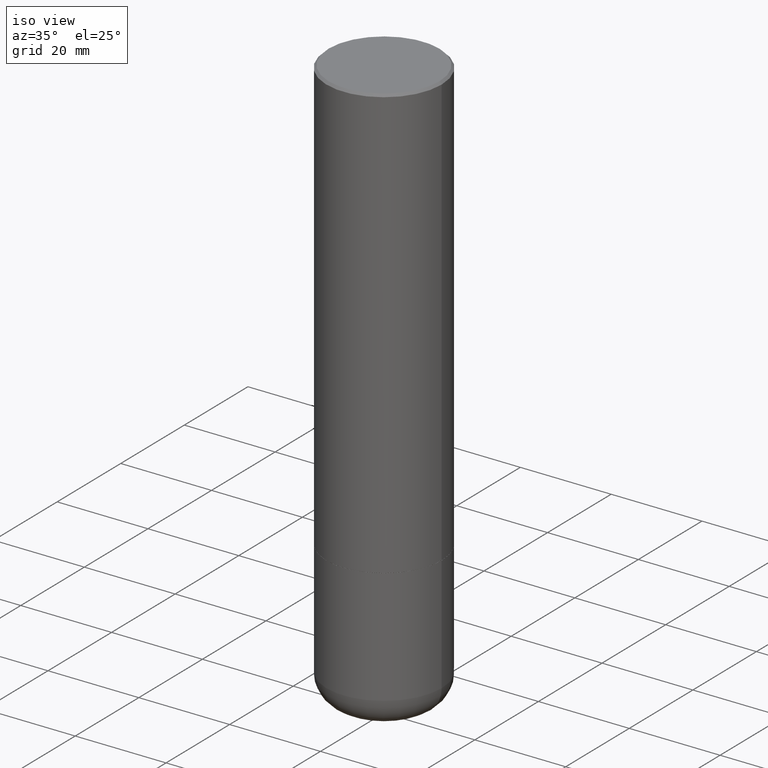
[diagram: clean part render]
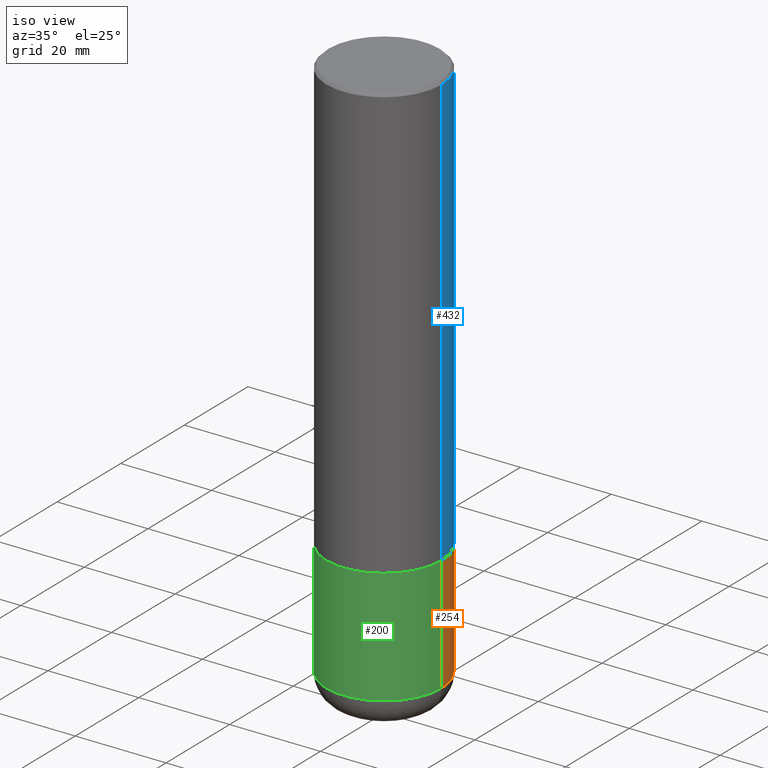
[diagram: same view with three faces highlighted in distinct colors, each labeled with its STEP entity id]
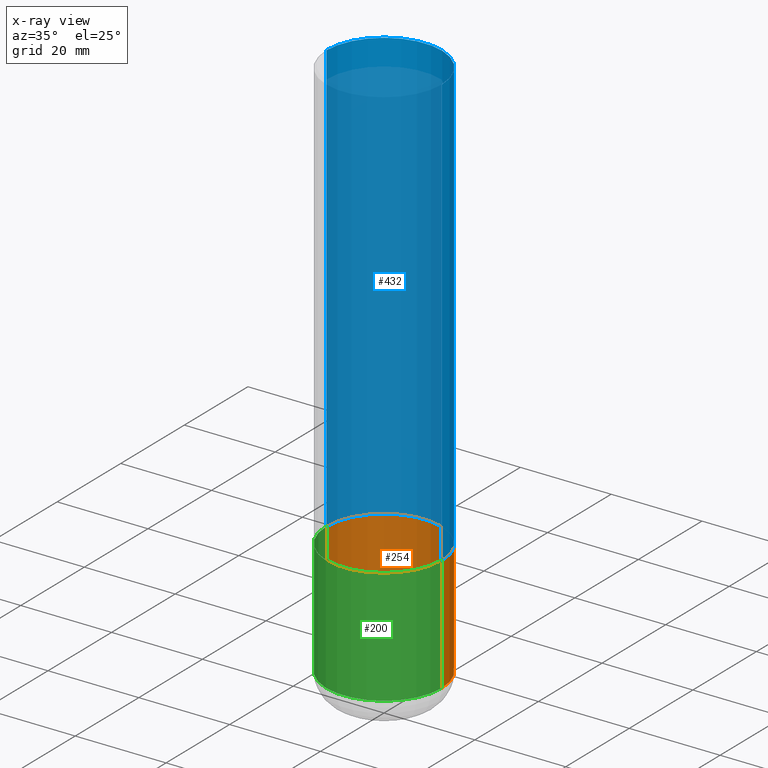
[diagram: x-ray of the same camera — body ghosted, the three highlighted faces saturated]
A machine part, iso view with three faces highlighted in distinct colors.
The next image is the same camera in x-ray (body ghosted, the three faces saturated) — at least one of them is partly hidden behind the body in this view.
Their STEP definitions:

[orange] entity #254 — the highlighted cylindrical surface (partial cylindrical patch) has radius 12.7 mm, axis along (-0, 0, 1).
#5 = VECTOR ( 'NONE', #279, 39.37007874015748143 ) ;
#10 = EDGE_CURVE ( 'NONE', #30, #378, #394, .T. ) ;
#23 = CARTESIAN_POINT ( 'NONE',  ( 0.4999999999999997224, -3.491481338843131383E-15, 2.438088387897966495E-29 ) ) ;
#30 = VERTEX_POINT ( 'NONE', #88 ) ;
#32 = CARTESIAN_POINT ( 'NONE',  ( -0.4999999999999994449, -1.128609862939673161E-14, -3.750000000000000000 ) ) ;
#35 = DIRECTION ( 'NONE',  ( -2.445468806185136597E-29, 3.491481338843145583E-15, 1.000000000000000000 ) ) ;
#48 = VERTEX_POINT ( 'NONE', #81 ) ;
#73 = CARTESIAN_POINT ( 'NONE',  ( -0.4999999999999997224, 3.552713678800498957E-15, -2.459467545127451490E-29 ) ) ;
#81 = CARTESIAN_POINT ( 'NONE',  ( -0.4999999999999999445, -1.128609862939673003E-14, -4.750009519233957533 ) ) ;
#88 = CARTESIAN_POINT ( 'NONE',  ( 0.5000000000000000000, -2.007605093457579787E-14, -4.750009519233957533 ) ) ;
#95 = ORIENTED_EDGE ( 'NONE', *, *, #185, .T. ) ;
#104 = EDGE_CURVE ( 'NONE', #378, #136, #192, .T. ) ;
#116 = DIRECTION ( 'NONE',  ( 1.000000000000000000, -6.982962677686266711E-15, 0.000000000000000000 ) ) ;
#128 = CARTESIAN_POINT ( 'NONE',  ( 0.000000000000000000, 0.000000000000000000, 0.000000000000000000 ) ) ;
#136 = VERTEX_POINT ( 'NONE', #32 ) ;
#166 = AXIS2_PLACEMENT_3D ( 'NONE', #402, #483, #116 ) ;
#170 = CYLINDRICAL_SURFACE ( 'NONE', #257, 0.4999999999999997224 ) ;
#185 = EDGE_CURVE ( 'NONE', #30, #48, #365, .T. ) ;
#192 = CIRCLE ( 'NONE', #256, 0.4999999999999994449 ) ;
#254 = ADVANCED_FACE ( 'NONE', ( #341 ), #170, .T. ) ;
#256 = AXIS2_PLACEMENT_3D ( 'NONE', #364, #35, #487 ) ;
#257 = AXIS2_PLACEMENT_3D ( 'NONE', #128, #461, #420 ) ;
#262 = ORIENTED_EDGE ( 'NONE', *, *, #10, .F. ) ;
#279 = DIRECTION ( 'NONE',  ( -2.445468806185136877E-29, 3.491481338843145188E-15, 1.000000000000000000 ) ) ;
#291 = CARTESIAN_POINT ( 'NONE',  ( 0.4999999999999994449, -1.658453635950492761E-14, -3.750000000000000000 ) ) ;
#309 = LINE ( 'NONE', #73, #346 ) ;
#310 = ORIENTED_EDGE ( 'NONE', *, *, #399, .T. ) ;
#341 = FACE_OUTER_BOUND ( 'NONE', #435, .T. ) ;
#346 = VECTOR ( 'NONE', #444, 39.37007874015748143 ) ;
#364 = CARTESIAN_POINT ( 'NONE',  ( 9.170508023194262238E-29, -1.309305502066179741E-14, -3.750000000000000000 ) ) ;
#365 = CIRCLE ( 'NONE', #166, 0.5000000000000000000 ) ;
#378 = VERTEX_POINT ( 'NONE', #291 ) ;
#394 = LINE ( 'NONE', #23, #5 ) ;
#399 = EDGE_CURVE ( 'NONE', #48, #136, #309, .T. ) ;
#402 = CARTESIAN_POINT ( 'NONE',  ( 1.161600010836909978E-28, -1.658456959573266451E-14, -4.750009519233957533 ) ) ;
#420 = DIRECTION ( 'NONE',  ( 1.000000000000000000, -6.982962677686266711E-15, 4.876176775795935793E-29 ) ) ;
#435 = EDGE_LOOP ( 'NONE', ( #95, #310, #456, #262 ) ) ;
#444 = DIRECTION ( 'NONE',  ( -2.445468806185136877E-29, 3.491481338843145188E-15, 1.000000000000000000 ) ) ;
#456 = ORIENTED_EDGE ( 'NONE', *, *, #104, .F. ) ;
#461 = DIRECTION ( 'NONE',  ( -2.445468806185136597E-29, 3.491481338843145583E-15, 1.000000000000000000 ) ) ;
#483 = DIRECTION ( 'NONE',  ( -2.445468806185136597E-29, 3.491481338843145583E-15, 1.000000000000000000 ) ) ;
#487 = DIRECTION ( 'NONE',  ( 1.000000000000000000, -6.982962677686266711E-15, 0.000000000000000000 ) ) ;

[blue] entity #432 — the highlighted cylindrical surface (partial cylindrical patch) has radius 12.7 mm, axis along (-0, 0, 1).
#4 = DIRECTION ( 'NONE',  ( -2.445468806185136597E-29, 3.491481338843145583E-15, 1.000000000000000000 ) ) ;
#37 = VECTOR ( 'NONE', #147, 39.37007874015748143 ) ;
#40 = DIRECTION ( 'NONE',  ( 1.000000000000000000, -6.982962677686266711E-15, 0.000000000000000000 ) ) ;
#41 = CARTESIAN_POINT ( 'NONE',  ( 0.4999999999999990563, -3.500078625662622769E-15, -0.02000000000000020164 ) ) ;
#64 = ORIENTED_EDGE ( 'NONE', *, *, #380, .F. ) ;
#76 = CARTESIAN_POINT ( 'NONE',  ( 0.4999999999999994449, -1.658104487816608303E-14, -3.749000000000000554 ) ) ;
#77 = ORIENTED_EDGE ( 'NONE', *, *, #79, .F. ) ;
#78 = DIRECTION ( 'NONE',  ( 1.000000000000000000, -6.982962677686266711E-15, 0.000000000000000000 ) ) ;
#79 = EDGE_CURVE ( 'NONE', #123, #349, #120, .T. ) ;
#86 = DIRECTION ( 'NONE',  ( -2.445468806185136597E-29, 3.491481338843145583E-15, 1.000000000000000000 ) ) ;
#96 = VECTOR ( 'NONE', #412, 39.37007874015748143 ) ;
#117 = CYLINDRICAL_SURFACE ( 'NONE', #484, 0.4999999999999992228 ) ;
#120 = LINE ( 'NONE', #371, #96 ) ;
#123 = VERTEX_POINT ( 'NONE', #76 ) ;
#147 = DIRECTION ( 'NONE',  ( -2.445468806185136877E-29, 3.491481338843145188E-15, 1.000000000000000000 ) ) ;
#150 = CARTESIAN_POINT ( 'NONE',  ( 9.168062554388078877E-29, -1.308956353932295441E-14, -3.749000000000000554 ) ) ;
#195 = VERTEX_POINT ( 'NONE', #404 ) ;
#204 = DIRECTION ( 'NONE',  ( 1.000000000000000000, -6.982962677686267499E-15, 4.876176775795935793E-29 ) ) ;
#205 = ORIENTED_EDGE ( 'NONE', *, *, #358, .T. ) ;
#228 = EDGE_LOOP ( 'NONE', ( #307, #205, #64, #77 ) ) ;
#230 = CARTESIAN_POINT ( 'NONE',  ( 4.890937612370322204E-31, -6.982962677686361867E-17, -0.02000000000000020164 ) ) ;
#255 = CARTESIAN_POINT ( 'NONE',  ( 0.000000000000000000, 0.000000000000000000, 0.000000000000000000 ) ) ;
#307 = ORIENTED_EDGE ( 'NONE', *, *, #369, .T. ) ;
#314 = CIRCLE ( 'NONE', #332, 0.4999999999999994449 ) ;
#325 = CARTESIAN_POINT ( 'NONE',  ( -0.4999999999999992228, 3.552713678800495407E-15, -2.459467545127449248E-29 ) ) ;
#332 = AXIS2_PLACEMENT_3D ( 'NONE', #150, #401, #78 ) ;
#349 = VERTEX_POINT ( 'NONE', #41 ) ;
#358 = EDGE_CURVE ( 'NONE', #195, #447, #362, .T. ) ;
#362 = LINE ( 'NONE', #325, #37 ) ;
#368 = CIRCLE ( 'NONE', #450, 0.4999999999999990563 ) ;
#369 = EDGE_CURVE ( 'NONE', #123, #195, #314, .T. ) ;
#371 = CARTESIAN_POINT ( 'NONE',  ( 0.4999999999999992228, -3.491481338843128228E-15, 2.438088387897963973E-29 ) ) ;
#380 = EDGE_CURVE ( 'NONE', #349, #447, #368, .T. ) ;
#401 = DIRECTION ( 'NONE',  ( -2.445468806185136597E-29, 3.491481338843145583E-15, 1.000000000000000000 ) ) ;
#404 = CARTESIAN_POINT ( 'NONE',  ( -0.4999999999999994449, -3.026982904249409106E-15, -3.749000000000000554 ) ) ;
#412 = DIRECTION ( 'NONE',  ( -2.445468806185136877E-29, 3.491481338843145188E-15, 1.000000000000000000 ) ) ;
#419 = CARTESIAN_POINT ( 'NONE',  ( -0.4999999999999990563, 3.421651712066262957E-15, -0.02000000000000020164 ) ) ;
#432 = ADVANCED_FACE ( 'NONE', ( #442 ), #117, .T. ) ;
#442 = FACE_OUTER_BOUND ( 'NONE', #228, .T. ) ;
#447 = VERTEX_POINT ( 'NONE', #419 ) ;
#450 = AXIS2_PLACEMENT_3D ( 'NONE', #230, #4, #40 ) ;
#484 = AXIS2_PLACEMENT_3D ( 'NONE', #255, #86, #204 ) ;

[green] entity #200 — the highlighted cylindrical surface (partial cylindrical patch) has radius 12.7 mm, axis along (-0, 0, 1).
#1 = CARTESIAN_POINT ( 'NONE',  ( 9.170508023194262238E-29, -1.309305502066179741E-14, -3.750000000000000000 ) ) ;
#5 = VECTOR ( 'NONE', #279, 39.37007874015748143 ) ;
#10 = EDGE_CURVE ( 'NONE', #30, #378, #394, .T. ) ;
#23 = CARTESIAN_POINT ( 'NONE',  ( 0.4999999999999997224, -3.491481338843131383E-15, 2.438088387897966495E-29 ) ) ;
#30 = VERTEX_POINT ( 'NONE', #88 ) ;
#32 = CARTESIAN_POINT ( 'NONE',  ( -0.4999999999999994449, -1.128609862939673161E-14, -3.750000000000000000 ) ) ;
#39 = FACE_OUTER_BOUND ( 'NONE', #232, .T. ) ;
#44 = EDGE_CURVE ( 'NONE', #136, #378, #249, .T. ) ;
#48 = VERTEX_POINT ( 'NONE', #81 ) ;
#69 = CIRCLE ( 'NONE', #437, 0.5000000000000000000 ) ;
#73 = CARTESIAN_POINT ( 'NONE',  ( -0.4999999999999997224, 3.552713678800498957E-15, -2.459467545127451490E-29 ) ) ;
#75 = DIRECTION ( 'NONE',  ( 1.000000000000000000, -6.982962677686266711E-15, 0.000000000000000000 ) ) ;
#81 = CARTESIAN_POINT ( 'NONE',  ( -0.4999999999999999445, -1.128609862939673003E-14, -4.750009519233957533 ) ) ;
#87 = CARTESIAN_POINT ( 'NONE',  ( 0.000000000000000000, 0.000000000000000000, 0.000000000000000000 ) ) ;
#88 = CARTESIAN_POINT ( 'NONE',  ( 0.5000000000000000000, -2.007605093457579787E-14, -4.750009519233957533 ) ) ;
#102 = ORIENTED_EDGE ( 'NONE', *, *, #340, .T. ) ;
#108 = ORIENTED_EDGE ( 'NONE', *, *, #10, .T. ) ;
#118 = CYLINDRICAL_SURFACE ( 'NONE', #475, 0.4999999999999997224 ) ;
#136 = VERTEX_POINT ( 'NONE', #32 ) ;
#143 = DIRECTION ( 'NONE',  ( -2.445468806185136597E-29, 3.491481338843145583E-15, 1.000000000000000000 ) ) ;
#152 = DIRECTION ( 'NONE',  ( 1.000000000000000000, -6.982962677686266711E-15, 0.000000000000000000 ) ) ;
#199 = AXIS2_PLACEMENT_3D ( 'NONE', #1, #261, #152 ) ;
#200 = ADVANCED_FACE ( 'NONE', ( #39 ), #118, .T. ) ;
#227 = DIRECTION ( 'NONE',  ( -2.445468806185136597E-29, 3.491481338843145583E-15, 1.000000000000000000 ) ) ;
#232 = EDGE_LOOP ( 'NONE', ( #389, #102, #108, #238 ) ) ;
#238 = ORIENTED_EDGE ( 'NONE', *, *, #44, .F. ) ;
#245 = CARTESIAN_POINT ( 'NONE',  ( 1.161600010836909978E-28, -1.658456959573266451E-14, -4.750009519233957533 ) ) ;
#249 = CIRCLE ( 'NONE', #199, 0.4999999999999994449 ) ;
#261 = DIRECTION ( 'NONE',  ( -2.445468806185136597E-29, 3.491481338843145583E-15, 1.000000000000000000 ) ) ;
#279 = DIRECTION ( 'NONE',  ( -2.445468806185136877E-29, 3.491481338843145188E-15, 1.000000000000000000 ) ) ;
#291 = CARTESIAN_POINT ( 'NONE',  ( 0.4999999999999994449, -1.658453635950492761E-14, -3.750000000000000000 ) ) ;
#309 = LINE ( 'NONE', #73, #346 ) ;
#340 = EDGE_CURVE ( 'NONE', #48, #30, #69, .T. ) ;
#346 = VECTOR ( 'NONE', #444, 39.37007874015748143 ) ;
#378 = VERTEX_POINT ( 'NONE', #291 ) ;
#389 = ORIENTED_EDGE ( 'NONE', *, *, #399, .F. ) ;
#394 = LINE ( 'NONE', #23, #5 ) ;
#399 = EDGE_CURVE ( 'NONE', #48, #136, #309, .T. ) ;
#437 = AXIS2_PLACEMENT_3D ( 'NONE', #245, #143, #75 ) ;
#444 = DIRECTION ( 'NONE',  ( -2.445468806185136877E-29, 3.491481338843145188E-15, 1.000000000000000000 ) ) ;
#475 = AXIS2_PLACEMENT_3D ( 'NONE', #87, #227, #491 ) ;
#491 = DIRECTION ( 'NONE',  ( 1.000000000000000000, -6.982962677686266711E-15, 4.876176775795935793E-29 ) ) ;